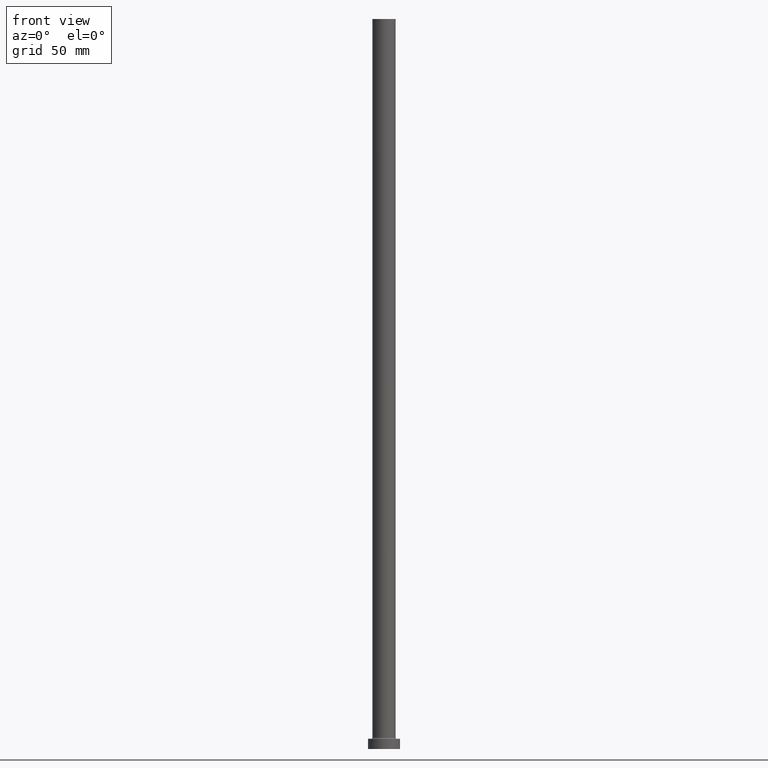
[diagram: clean part render]
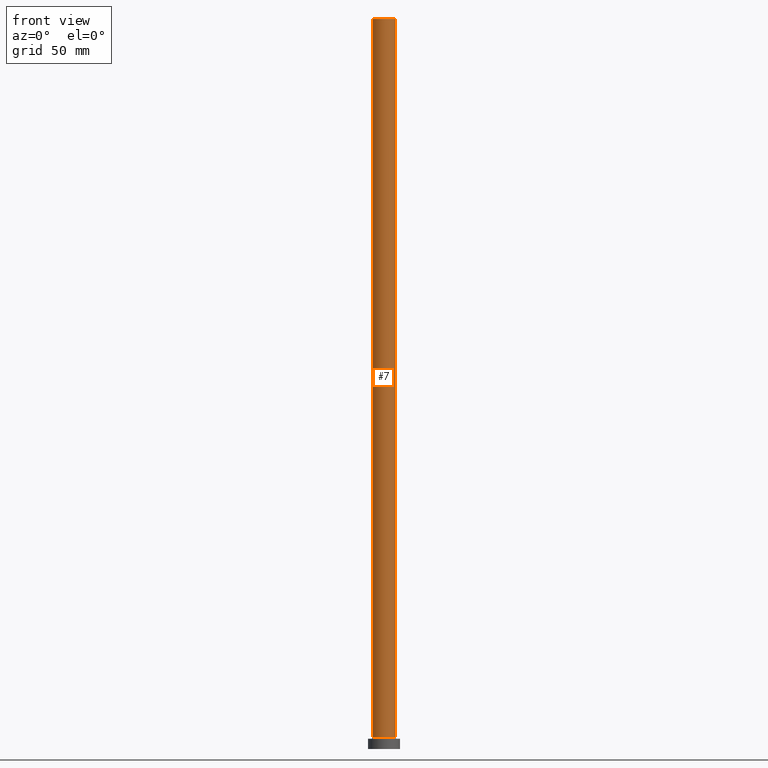
[diagram: same view with one face highlighted and labeled with its STEP entity id]
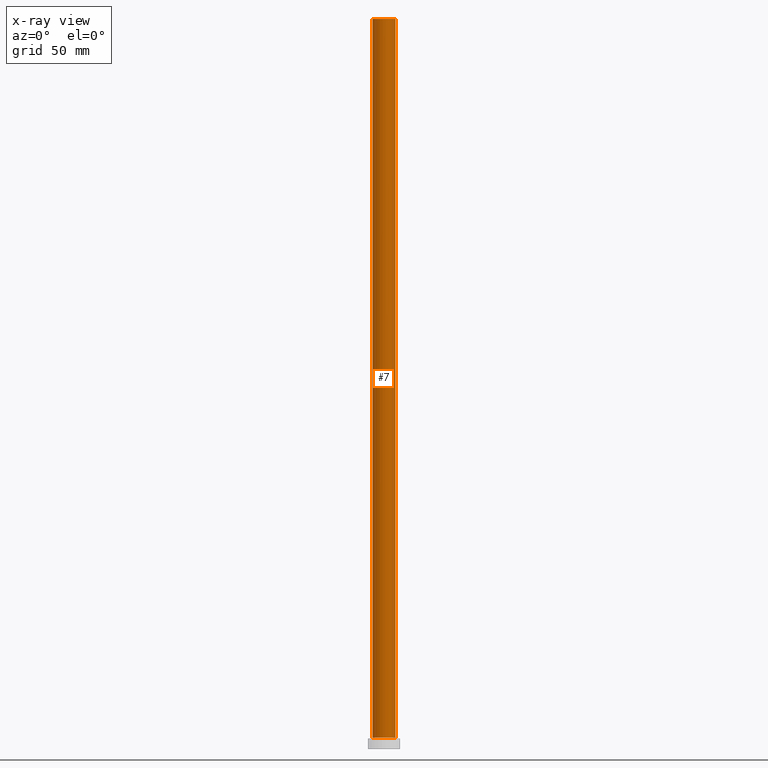
[diagram: x-ray of the same camera — body ghosted, the highlighted face saturated]
A machine part, front view. The second image highlights one B-rep face of the part: STEP entity #7.
The next image is the same camera in x-ray: the body ghosted, the highlighted face saturated — about 0% of this face is hidden behind the body in this view.
In plain terms, the highlighted cylindrical surface (edge-blend (fillet) strip) has radius 8 mm, axis along (-0, -0, -1).
Its self-contained STEP definition (entity closure, byte-faithful):
#7 = ADVANCED_FACE ( 'NONE', ( #408 ), #86, .T. ) ;
#14 = AXIS2_PLACEMENT_3D ( 'NONE', #229, #370, #59 ) ;
#32 = EDGE_CURVE ( 'NONE', #256, #159, #70, .T. ) ;
#53 = CARTESIAN_POINT ( 'NONE',  ( -8.000000000000000000, 0.000000000000000000, 500.0000000000000000 ) ) ;
#55 = EDGE_CURVE ( 'NONE', #159, #269, #121, .T. ) ;
#59 = DIRECTION ( 'NONE',  ( -1.000000000000000000, 0.000000000000000000, 0.000000000000000000 ) ) ;
#67 = ORIENTED_EDGE ( 'NONE', *, *, #55, .F. ) ;
#70 = CIRCLE ( 'NONE', #195, 8.000000000000000000 ) ;
#86 = CYLINDRICAL_SURFACE ( 'NONE', #14, 8.000000000000000000 ) ;
#121 = LINE ( 'NONE', #411, #363 ) ;
#142 = CARTESIAN_POINT ( 'NONE',  ( 8.000000000000000000, 9.797174393178825657E-16, 7.699999999999985079 ) ) ;
#146 = EDGE_LOOP ( 'NONE', ( #67, #377, #235, #381 ) ) ;
#155 = LINE ( 'NONE', #53, #438 ) ;
#159 = VERTEX_POINT ( 'NONE', #343 ) ;
#167 = EDGE_CURVE ( 'NONE', #260, #269, #414, .T. ) ;
#175 = CARTESIAN_POINT ( 'NONE',  ( 0.000000000000000000, 0.000000000000000000, 7.699999999999985079 ) ) ;
#188 = AXIS2_PLACEMENT_3D ( 'NONE', #175, #208, #254 ) ;
#195 = AXIS2_PLACEMENT_3D ( 'NONE', #403, #398, #360 ) ;
#208 = DIRECTION ( 'NONE',  ( 0.000000000000000000, 0.000000000000000000, 1.000000000000000000 ) ) ;
#213 = EDGE_CURVE ( 'NONE', #256, #260, #155, .T. ) ;
#229 = CARTESIAN_POINT ( 'NONE',  ( 0.000000000000000000, 0.000000000000000000, 500.0000000000000000 ) ) ;
#235 = ORIENTED_EDGE ( 'NONE', *, *, #213, .T. ) ;
#237 = DIRECTION ( 'NONE',  ( -0.000000000000000000, -0.000000000000000000, -1.000000000000000000 ) ) ;
#249 = CARTESIAN_POINT ( 'NONE',  ( -8.000000000000000000, 0.000000000000000000, 7.699999999999985079 ) ) ;
#254 = DIRECTION ( 'NONE',  ( 1.000000000000000000, 0.000000000000000000, 0.000000000000000000 ) ) ;
#256 = VERTEX_POINT ( 'NONE', #348 ) ;
#260 = VERTEX_POINT ( 'NONE', #249 ) ;
#269 = VERTEX_POINT ( 'NONE', #142 ) ;
#330 = DIRECTION ( 'NONE',  ( -0.000000000000000000, -0.000000000000000000, -1.000000000000000000 ) ) ;
#343 = CARTESIAN_POINT ( 'NONE',  ( 8.000000000000000000, 9.797174393178825657E-16, 500.0000000000000000 ) ) ;
#348 = CARTESIAN_POINT ( 'NONE',  ( -8.000000000000000000, 0.000000000000000000, 500.0000000000000000 ) ) ;
#360 = DIRECTION ( 'NONE',  ( 1.000000000000000000, 0.000000000000000000, 0.000000000000000000 ) ) ;
#363 = VECTOR ( 'NONE', #237, 1000.000000000000000 ) ;
#370 = DIRECTION ( 'NONE',  ( -0.000000000000000000, -0.000000000000000000, -1.000000000000000000 ) ) ;
#377 = ORIENTED_EDGE ( 'NONE', *, *, #32, .F. ) ;
#381 = ORIENTED_EDGE ( 'NONE', *, *, #167, .T. ) ;
#398 = DIRECTION ( 'NONE',  ( 0.000000000000000000, 0.000000000000000000, 1.000000000000000000 ) ) ;
#403 = CARTESIAN_POINT ( 'NONE',  ( 0.000000000000000000, 0.000000000000000000, 500.0000000000000000 ) ) ;
#408 = FACE_OUTER_BOUND ( 'NONE', #146, .T. ) ;
#411 = CARTESIAN_POINT ( 'NONE',  ( 8.000000000000000000, 9.797174393178825657E-16, 500.0000000000000000 ) ) ;
#414 = CIRCLE ( 'NONE', #188, 8.000000000000000000 ) ;
#438 = VECTOR ( 'NONE', #330, 1000.000000000000000 ) ;